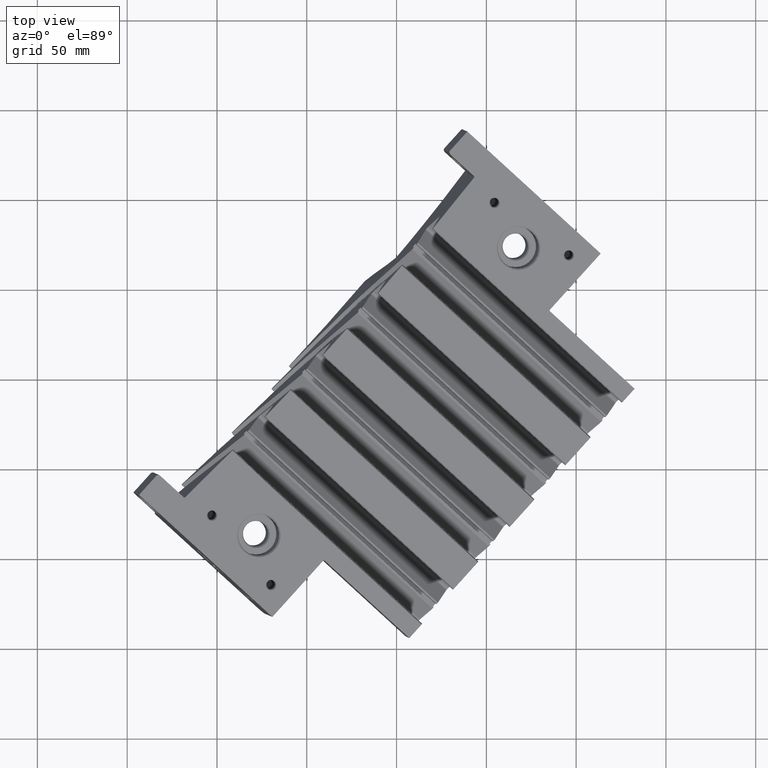
[diagram: clean part render]
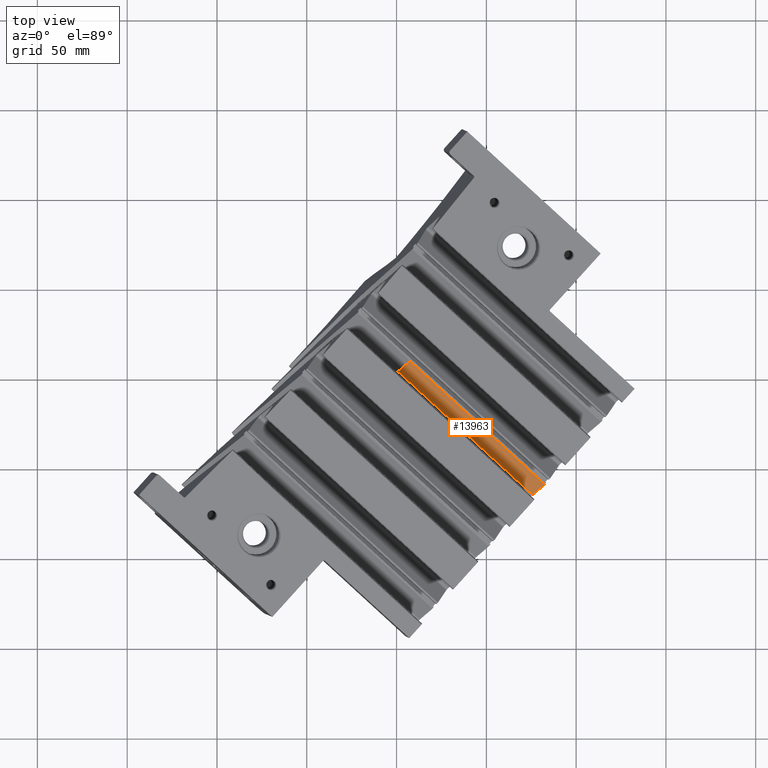
[diagram: same view with one face highlighted and labeled with its STEP entity id]
A machine part, top view. The second image highlights one B-rep face of the part: STEP entity #13963.
In plain terms, the highlighted planar face has unit normal (0.3807, 0.5769, -0.7227).
Its self-contained STEP definition (entity closure, byte-faithful):
#592=CARTESIAN_POINT('',(9.353324118548E1,-3.207283307423E1,-5.834932869681E0));
#594=DIRECTION('',(-5.658844464111E-1,-4.715481264535E-1,-6.763262213964E-1));
#595=VECTOR('',#594,4.737948512604E-1);
#596=CARTESIAN_POINT('',(9.380135432260E1,-3.184941599979E1,-5.514492988211E0));
#597=LINE('',#596,#595);
#1847=CARTESIAN_POINT('',(9.084866212110E1,-2.915754141938E1,
-4.920794024429E0));
#1858=DIRECTION('',(5.658717455781E-1,4.715294614207E-1,6.763498610695E-1));
#1859=VECTOR('',#1858,4.718943871410E-1);
#1860=CARTESIAN_POINT('',(9.058163042052E1,-2.938005352560E1,
-5.239959727611E0));
#1861=LINE('',#1860,#1859);
#4891=DIRECTION('',(7.306983373075E-1,-6.666222939296E-1,-1.472910624989E-1));
#4892=VECTOR('',#4891,4.039438184343E0);
#4893=CARTESIAN_POINT('',(9.058163042052E1,-2.938005352560E1,
-5.239959727611E0));
#4894=LINE('',#4893,#4892);
#4895=DIRECTION('',(7.309661104288E-1,-6.663983095875E-1,-1.469756387416E-1));
#4896=VECTOR('',#4895,4.039437888251E0);
#4897=CARTESIAN_POINT('',(9.084866212110E1,-2.915754141938E1,
-4.920794024429E0));
#4898=LINE('',#4897,#4896);
#5700=VERTEX_POINT('',#592);
#5704=CARTESIAN_POINT('',(9.058163042052E1,-2.938005352560E1,
-5.239959727611E0));
#5705=VERTEX_POINT('',#5704);
#5774=CARTESIAN_POINT('',(9.380135432260E1,-3.184941599979E1,
-5.514492988211E0));
#5776=VERTEX_POINT('',#5774);
#5794=VERTEX_POINT('',#1847);
#13951=CARTESIAN_POINT('',(9.058210380323E1,-2.937981855961E1,
-5.238669739667E0));
#13952=DIRECTION('',(3.806755261632E-1,5.769417285700E-1,-7.226509431358E-1));
#13953=DIRECTION('',(5.663697460008E-1,4.722833204905E-1,6.754063784134E-1));
#13954=AXIS2_PLACEMENT_3D('',#13951,#13952,#13953);
#13955=PLANE('',#13954);
#13956=ORIENTED_EDGE('',*,*,#8769,.F.);
#13957=ORIENTED_EDGE('',*,*,#8756,.T.);
#13959=ORIENTED_EDGE('',*,*,#13958,.T.);
#13960=ORIENTED_EDGE('',*,*,#6935,.T.);
#13961=EDGE_LOOP('',(#13956,#13957,#13959,#13960));
#13962=FACE_OUTER_BOUND('',#13961,.F.);
#13963=ADVANCED_FACE('',(#13962),#13955,.F.);
#6935=EDGE_CURVE('',#5776,#5700,#597,.T.);
#8756=EDGE_CURVE('',#5705,#5794,#1861,.T.);
#8769=EDGE_CURVE('',#5705,#5700,#4894,.T.);
#13958=EDGE_CURVE('',#5794,#5776,#4898,.T.);